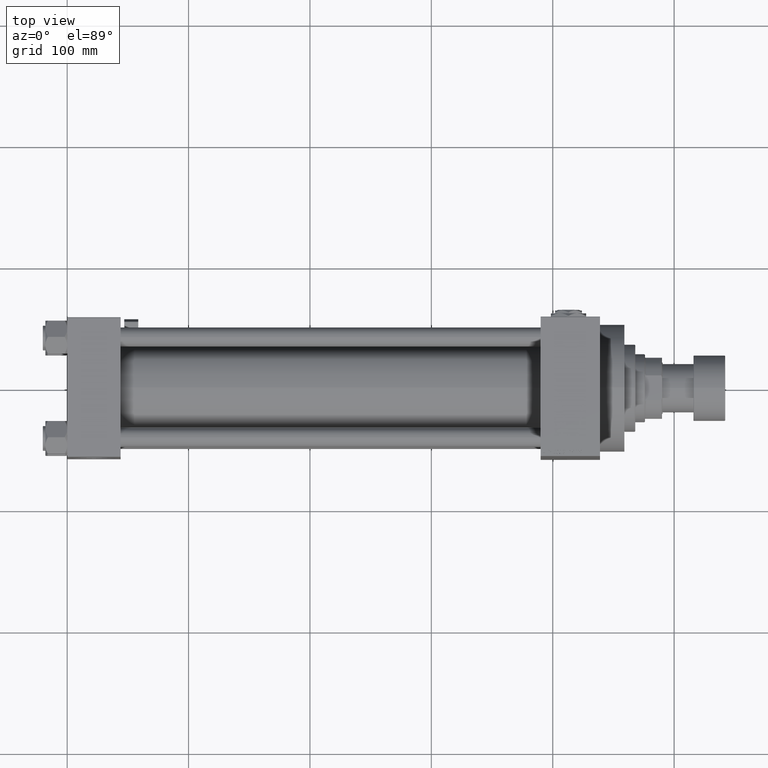
[diagram: clean part render]
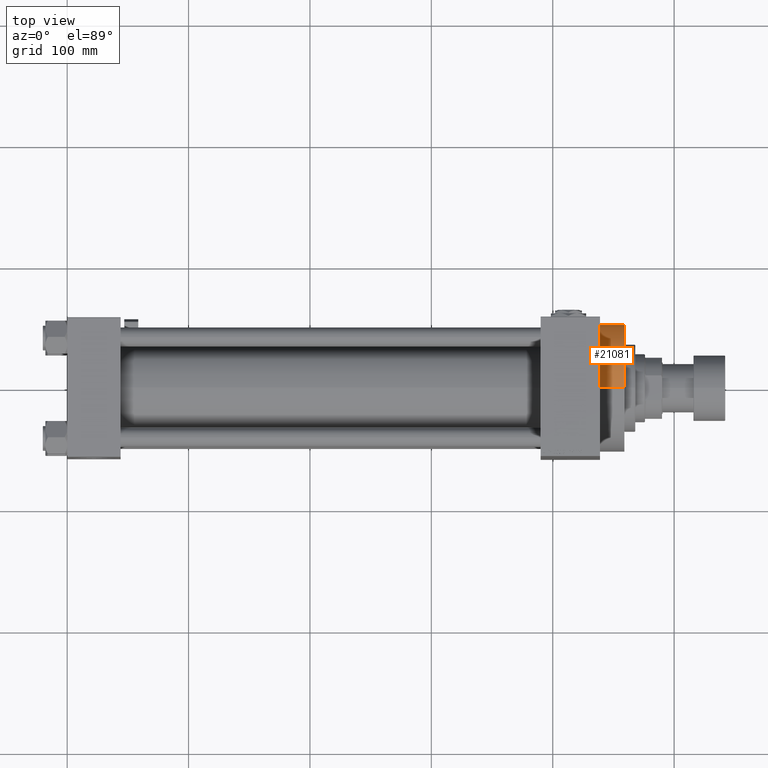
[diagram: same view with one face highlighted and labeled with its STEP entity id]
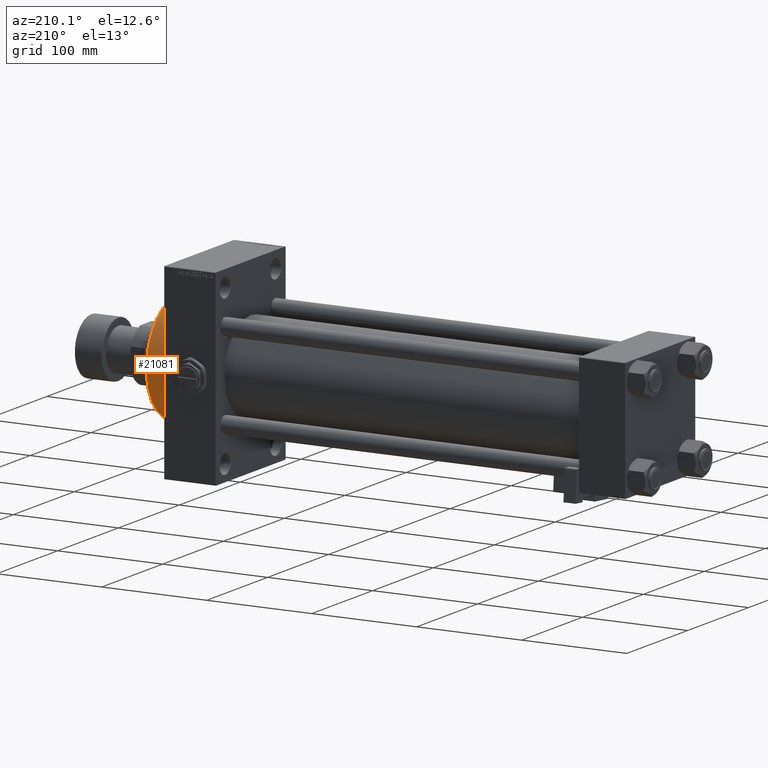
[diagram: same view with one face highlighted and labeled with its STEP entity id]
A machine part, top view. The second image highlights one B-rep face of the part: STEP entity #21081.
A second angle (auxiliary view) of the same face is appended — the face is thin or edge-on in the first view.
In plain terms, the highlighted cylindrical surface (partial cylindrical patch) has radius 52.5 mm, axis along (-1, -0, -0).
Its self-contained STEP definition (entity closure, byte-faithful):
#402 = EDGE_LOOP ( 'NONE', ( #29713, #18744, #33574, #43061 ) ) ;
#932 = AXIS2_PLACEMENT_3D ( 'NONE', #27541, #43521, #7902 ) ;
#2058 = CARTESIAN_POINT ( 'NONE',  ( 458.9999999999999432, 6.429395695523603956E-15, -52.50000000000000000 ) ) ;
#2401 = VERTEX_POINT ( 'NONE', #12048 ) ;
#4924 = CIRCLE ( 'NONE', #18293, 52.50000000000000000 ) ;
#6682 = VECTOR ( 'NONE', #47256, 1000.000000000000000 ) ;
#7902 = DIRECTION ( 'NONE',  ( 0.000000000000000000, 0.000000000000000000, 1.000000000000000000 ) ) ;
#8158 = FACE_OUTER_BOUND ( 'NONE', #402, .T. ) ;
#9803 = EDGE_CURVE ( 'NONE', #37797, #10675, #20722, .T. ) ;
#10395 = CARTESIAN_POINT ( 'NONE',  ( 458.9999999999999432, 0.000000000000000000, 0.000000000000000000 ) ) ;
#10675 = VERTEX_POINT ( 'NONE', #24347 ) ;
#12048 = CARTESIAN_POINT ( 'NONE',  ( 438.9999999999999432, 0.000000000000000000, 52.50000000000000000 ) ) ;
#15890 = EDGE_CURVE ( 'NONE', #10675, #2401, #16072, .T. ) ;
#16072 = LINE ( 'NONE', #48030, #6682 ) ;
#16112 = CARTESIAN_POINT ( 'NONE',  ( 438.9999999999999432, 0.000000000000000000, 0.000000000000000000 ) ) ;
#17457 = LINE ( 'NONE', #49411, #30242 ) ;
#18293 = AXIS2_PLACEMENT_3D ( 'NONE', #16112, #48330, #45172 ) ;
#18744 = ORIENTED_EDGE ( 'NONE', *, *, #22603, .T. ) ;
#20722 = CIRCLE ( 'NONE', #34131, 52.50000000000000000 ) ;
#21081 = ADVANCED_FACE ( 'NONE', ( #8158 ), #39084, .T. ) ;
#22603 = EDGE_CURVE ( 'NONE', #37797, #25986, #17457, .T. ) ;
#24347 = CARTESIAN_POINT ( 'NONE',  ( 458.9999999999999432, 0.000000000000000000, 52.50000000000000000 ) ) ;
#25986 = VERTEX_POINT ( 'NONE', #40173 ) ;
#26380 = DIRECTION ( 'NONE',  ( 0.000000000000000000, 0.000000000000000000, -1.000000000000000000 ) ) ;
#27541 = CARTESIAN_POINT ( 'NONE',  ( 458.9999999999999432, 0.000000000000000000, 0.000000000000000000 ) ) ;
#28087 = EDGE_CURVE ( 'NONE', #25986, #2401, #4924, .T. ) ;
#29713 = ORIENTED_EDGE ( 'NONE', *, *, #9803, .F. ) ;
#30242 = VECTOR ( 'NONE', #37636, 1000.000000000000000 ) ;
#30832 = DIRECTION ( 'NONE',  ( 1.000000000000000000, 0.000000000000000000, 0.000000000000000000 ) ) ;
#33574 = ORIENTED_EDGE ( 'NONE', *, *, #28087, .T. ) ;
#34131 = AXIS2_PLACEMENT_3D ( 'NONE', #10395, #30832, #26380 ) ;
#37636 = DIRECTION ( 'NONE',  ( -1.000000000000000000, -0.000000000000000000, -0.000000000000000000 ) ) ;
#37797 = VERTEX_POINT ( 'NONE', #2058 ) ;
#39084 = CYLINDRICAL_SURFACE ( 'NONE', #932, 52.50000000000000000 ) ;
#40173 = CARTESIAN_POINT ( 'NONE',  ( 438.9999999999999432, 6.429395695523603956E-15, -52.50000000000000000 ) ) ;
#43061 = ORIENTED_EDGE ( 'NONE', *, *, #15890, .F. ) ;
#43521 = DIRECTION ( 'NONE',  ( -1.000000000000000000, -0.000000000000000000, -0.000000000000000000 ) ) ;
#45172 = DIRECTION ( 'NONE',  ( 0.000000000000000000, 0.000000000000000000, -1.000000000000000000 ) ) ;
#47256 = DIRECTION ( 'NONE',  ( -1.000000000000000000, -0.000000000000000000, -0.000000000000000000 ) ) ;
#48030 = CARTESIAN_POINT ( 'NONE',  ( 458.9999999999999432, 0.000000000000000000, 52.50000000000000000 ) ) ;
#48330 = DIRECTION ( 'NONE',  ( 1.000000000000000000, 0.000000000000000000, 0.000000000000000000 ) ) ;
#49411 = CARTESIAN_POINT ( 'NONE',  ( 458.9999999999999432, 6.429395695523603956E-15, -52.50000000000000000 ) ) ;